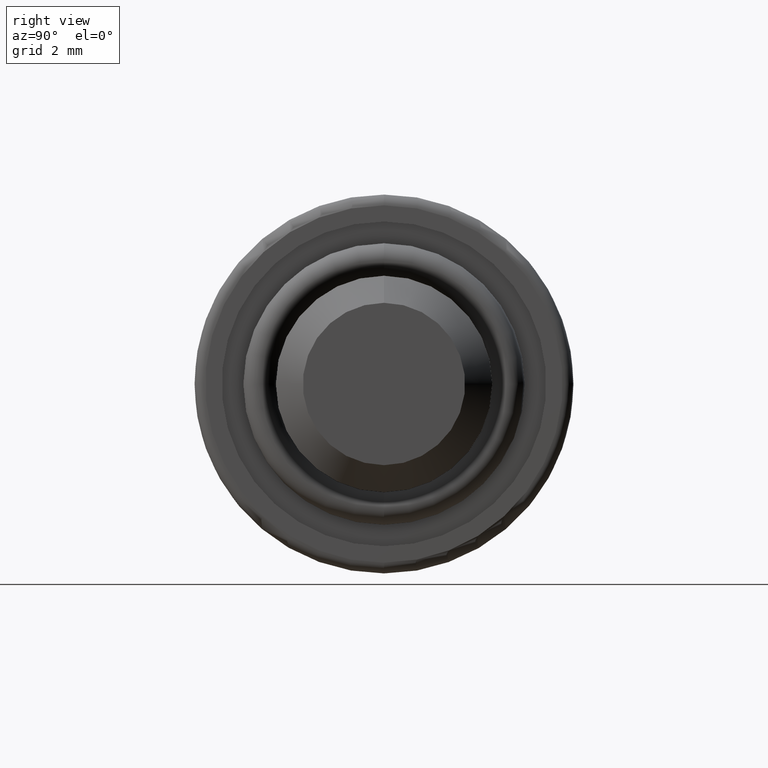
[diagram: clean part render]
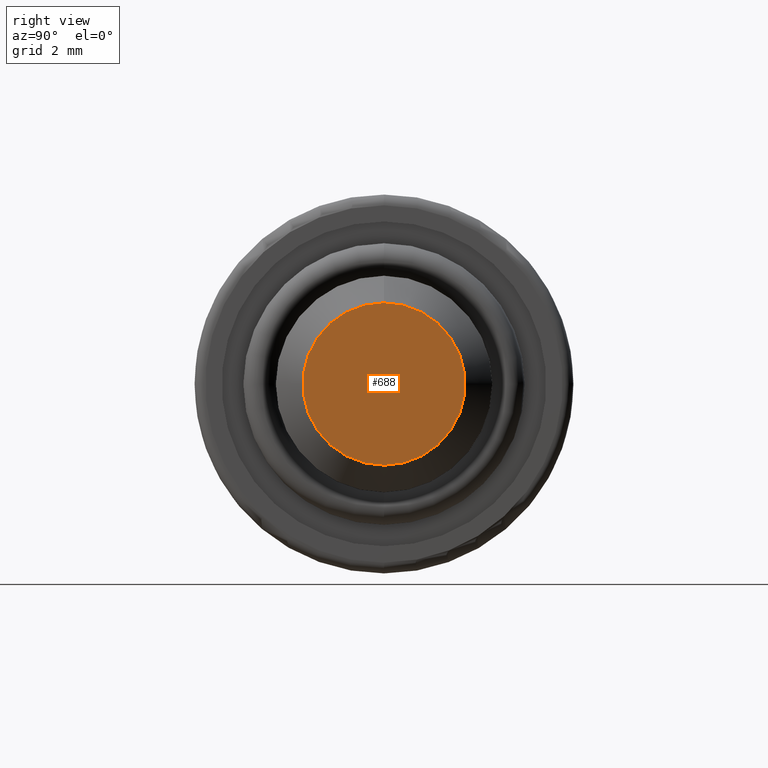
[diagram: same view with one face highlighted and labeled with its STEP entity id]
A machine part, right view. The second image highlights one B-rep face of the part: STEP entity #688.
In plain terms, the highlighted planar face has unit normal (1, 0, 0).
Its self-contained STEP definition (entity closure, byte-faithful):
#19 = CARTESIAN_POINT ( 'NONE',  ( 6.000000000000000000, 0.0000000000000000000, 0.0000000000000000000 ) ) ;
#33 = VERTEX_POINT ( 'NONE', #428 ) ;
#66 = CARTESIAN_POINT ( 'NONE',  ( 6.000000000000000000, 0.0000000000000000000, 0.0000000000000000000 ) ) ;
#111 = AXIS2_PLACEMENT_3D ( 'NONE', #256, #323, #512 ) ;
#139 = DIRECTION ( 'NONE',  ( 0.0000000000000000000, 0.0000000000000000000, -1.000000000000000000 ) ) ;
#256 = CARTESIAN_POINT ( 'NONE',  ( 6.000000000000000000, 0.0000000000000000000, 0.0000000000000000000 ) ) ;
#268 = VERTEX_POINT ( 'NONE', #438 ) ;
#317 = PLANE ( 'NONE',  #111 ) ;
#323 = DIRECTION ( 'NONE',  ( 1.000000000000000000, 0.0000000000000000000, 0.0000000000000000000 ) ) ;
#332 = DIRECTION ( 'NONE',  ( 0.0000000000000000000, 0.0000000000000000000, -1.000000000000000000 ) ) ;
#378 = DIRECTION ( 'NONE',  ( 1.000000000000000000, 0.0000000000000000000, 0.0000000000000000000 ) ) ;
#393 = DIRECTION ( 'NONE',  ( 1.000000000000000000, 0.0000000000000000000, 0.0000000000000000000 ) ) ;
#420 = EDGE_CURVE ( 'NONE', #33, #268, #791, .T. ) ;
#425 = ORIENTED_EDGE ( 'NONE', *, *, #678, .T. ) ;
#428 = CARTESIAN_POINT ( 'NONE',  ( 6.000000000000000000, 2.143131898507867800E-016, -1.499999999999999600 ) ) ;
#438 = CARTESIAN_POINT ( 'NONE',  ( 6.000000000000000000, 0.0000000000000000000, 1.499999999999999600 ) ) ;
#512 = DIRECTION ( 'NONE',  ( 0.0000000000000000000, 0.0000000000000000000, -1.000000000000000000 ) ) ;
#577 = ORIENTED_EDGE ( 'NONE', *, *, #420, .T. ) ;
#678 = EDGE_CURVE ( 'NONE', #268, #33, #749, .T. ) ;
#688 = ADVANCED_FACE ( 'NONE', ( #780 ), #317, .T. ) ;
#749 = CIRCLE ( 'NONE', #803, 1.499999999999999600 ) ;
#752 = EDGE_LOOP ( 'NONE', ( #425, #577 ) ) ;
#780 = FACE_OUTER_BOUND ( 'NONE', #752, .T. ) ;
#791 = CIRCLE ( 'NONE', #809, 1.499999999999999600 ) ;
#803 = AXIS2_PLACEMENT_3D ( 'NONE', #66, #378, #139 ) ;
#809 = AXIS2_PLACEMENT_3D ( 'NONE', #19, #393, #332 ) ;